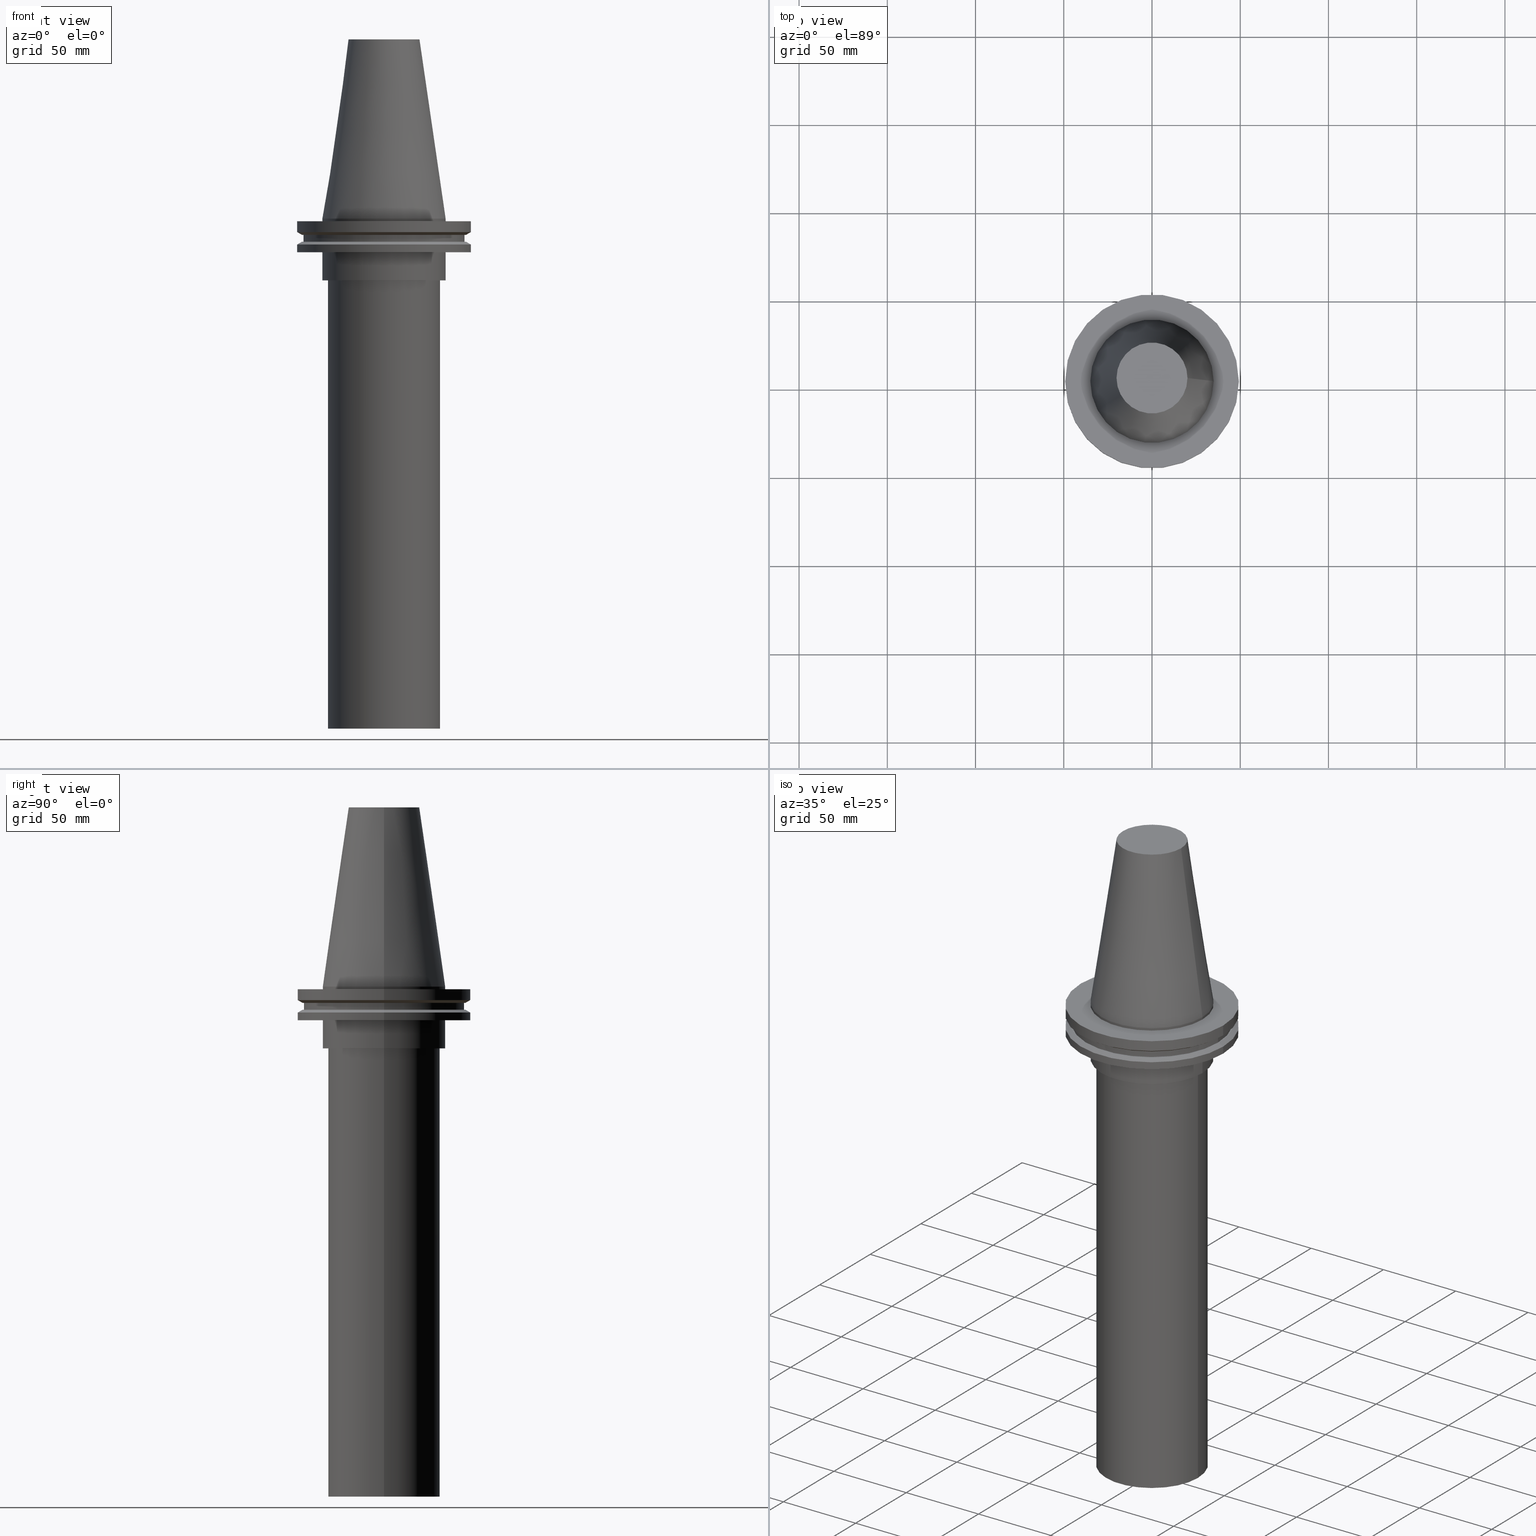
[diagram: canonical four-view strip — front | top / right | iso, engineering-drawing reading convention]
A machine part, canonical four-view strip (front | top / right | iso — engineering-drawing reading convention). The complete STEP part file that produces these views, byte-faithful:
ISO-10303-21;
HEADER;
FILE_DESCRIPTION (( 'STEP AP203' ),
    '1' );
FILE_NAME ('11.368.667.stp',
    '2022-03-09T15:22:56',
    ( '' ),
    ( '' ),
    'SwSTEP 2.0',
    'SolidWorks 2021',
    '' );
FILE_SCHEMA (( 'CONFIG_CONTROL_DESIGN' ));
ENDSEC;

DATA;
#1 = VERTEX_POINT ( 'NONE', #312 ) ;
#2 = DIRECTION ( 'NONE',  ( 1.000000000000000000, 0.000000000000000000, 0.000000000000000000 ) ) ;
#3 = COORDINATED_UNIVERSAL_TIME_OFFSET ( 6, 0, .BEHIND. ) ;
#4 = EDGE_CURVE ( 'NONE', #118, #118, #334, .T. ) ;
#5 = EDGE_LOOP ( 'NONE', ( #287 ) ) ;
#6 = AXIS2_PLACEMENT_3D ( 'NONE', #23, #241, #365 ) ;
#7 = AXIS2_PLACEMENT_3D ( 'NONE', #281, #375, #2 ) ;
#8 = FACE_OUTER_BOUND ( 'NONE', #316, .T. ) ;
#9 = VERTEX_POINT ( 'NONE', #345 ) ;
#10 = ORIENTED_EDGE ( 'NONE', *, *, #48, .T. ) ;
#11 = ADVANCED_FACE ( 'NONE', ( #42, #8 ), #374, .T. ) ;
#12 = FACE_OUTER_BOUND ( 'NONE', #106, .T. ) ;
#13 = CARTESIAN_POINT ( 'NONE',  ( 0.000000000000000000, 49.21499999999998920, -19.04999999999999716 ) ) ;
#14 = FACE_BOUND ( 'NONE', #67, .T. ) ;
#15 = DIRECTION ( 'NONE',  ( 1.000000000000000000, 0.000000000000000000, 0.000000000000000000 ) ) ;
#16 = PERSON_AND_ORGANIZATION ( #393, #100 ) ;
#17 = DIRECTION ( 'NONE',  ( -0.000000000000000000, -0.000000000000000000, 1.000000000000000000 ) ) ;
#18 = CONICAL_SURFACE ( 'NONE', #230, 46.43919780457007818, 1.047197551196575205 ) ;
#19 = CARTESIAN_POINT ( 'NONE',  ( 0.000000000000000000, 31.75000000000000000, -289.0000000000000568 ) ) ;
#20 = EDGE_CURVE ( 'NONE', #358, #358, #240, .T. ) ;
#21 = DIRECTION ( 'NONE',  ( -0.000000000000000000, -0.000000000000000000, 1.000000000000000000 ) ) ;
#22 = EDGE_LOOP ( 'NONE', ( #313 ) ) ;
#23 = CARTESIAN_POINT ( 'NONE',  ( 0.000000000000000000, 0.000000000000000000, 0.000000000000000000 ) ) ;
#24 = CIRCLE ( 'NONE', #78, 46.43919780457007818 ) ;
#25 = DIRECTION ( 'NONE',  ( 0.000000000000000000, 0.000000000000000000, -1.000000000000000000 ) ) ;
#26 = EDGE_CURVE ( 'NONE', #239, #239, #212, .T. ) ;
#27 = EDGE_LOOP ( 'NONE', ( #130 ) ) ;
#28 = DIRECTION ( 'NONE',  ( -1.000000000000000000, 0.000000000000000000, 0.000000000000000000 ) ) ;
#29 = EDGE_LOOP ( 'NONE', ( #254 ) ) ;
#30 = SECURITY_CLASSIFICATION ( '', '', #51 ) ;
#31 = PERSON_AND_ORGANIZATION ( #393, #100 ) ;
#32 = CARTESIAN_POINT ( 'NONE',  ( 0.000000000000000000, 0.000000000000000000, -9.204999999999991189 ) ) ;
#33 = VERTEX_POINT ( 'NONE', #134 ) ;
#34 = ORIENTED_EDGE ( 'NONE', *, *, #388, .T. ) ;
#35 = APPLICATION_CONTEXT ( 'configuration controlled 3d designs of mechanical parts and assemblies' ) ;
#36 = VERTEX_POINT ( 'NONE', #215 ) ;
#37 = EDGE_LOOP ( 'NONE', ( #188 ) ) ;
#38 = AXIS2_PLACEMENT_3D ( 'NONE', #201, #356, #85 ) ;
#39 = PERSON_AND_ORGANIZATION ( #393, #100 ) ;
#40 = AXIS2_PLACEMENT_3D ( 'NONE', #233, #351, #170 ) ;
#41 = CC_DESIGN_PERSON_AND_ORGANIZATION_ASSIGNMENT ( #39, #369, ( #372 ) ) ;
#42 = FACE_OUTER_BOUND ( 'NONE', #79, .T. ) ;
#43 = EDGE_LOOP ( 'NONE', ( #208 ) ) ;
#44 = DIRECTION ( 'NONE',  ( 0.000000000000000000, 0.000000000000000000, -1.000000000000000000 ) ) ;
#45 = PERSON_AND_ORGANIZATION ( #393, #100 ) ;
#46 = CARTESIAN_POINT ( 'NONE',  ( 0.000000000000000000, 0.000000000000000000, -35.00000000000000000 ) ) ;
#47 = CIRCLE ( 'NONE', #390, 34.92499999999999005 ) ;
#48 = EDGE_CURVE ( 'NONE', #211, #211, #283, .T. ) ;
#49 = APPROVAL_STATUS ( 'not_yet_approved' ) ;
#50 = DIRECTION ( 'NONE',  ( -1.000000000000000000, 0.000000000000000000, -0.000000000000000000 ) ) ;
#51 = SECURITY_CLASSIFICATION_LEVEL ( 'unclassified' ) ;
#52 = DIRECTION ( 'NONE',  ( 1.000000000000000000, 0.000000000000000000, 0.000000000000000000 ) ) ;
#53 = DIRECTION ( 'NONE',  ( -0.000000000000000000, -0.000000000000000000, 1.000000000000000000 ) ) ;
#54 = EDGE_CURVE ( 'NONE', #9, #9, #159, .T. ) ;
#55 = DIRECTION ( 'NONE',  ( 1.000000000000000000, 0.000000000000000000, 0.000000000000000000 ) ) ;
#56 = EDGE_LOOP ( 'NONE', ( #104 ) ) ;
#57 = PLANE ( 'NONE',  #262 ) ;
#58 = CC_DESIGN_PERSON_AND_ORGANIZATION_ASSIGNMENT ( #45, #165, ( #30 ) ) ;
#59 = CARTESIAN_POINT ( 'NONE',  ( 0.000000000000000000, 0.000000000000000000, -14.65761014474876944 ) ) ;
#60 = AXIS2_PLACEMENT_3D ( 'NONE', #59, #303, #206 ) ;
#61 = ORIENTED_EDGE ( 'NONE', *, *, #48, .F. ) ;
#62 = AXIS2_PLACEMENT_3D ( 'NONE', #244, #344, #367 ) ;
#63 = CIRCLE ( 'NONE', #167, 31.75000000000000000 ) ;
#64 = FACE_OUTER_BOUND ( 'NONE', #99, .T. ) ;
#65 = FACE_OUTER_BOUND ( 'NONE', #158, .T. ) ;
#66 = APPROVAL_ROLE ( '' ) ;
#67 = EDGE_LOOP ( 'NONE', ( #178 ) ) ;
#68 = EDGE_CURVE ( 'NONE', #279, #279, #364, .T. ) ;
#69 = APPROVAL_PERSON_ORGANIZATION ( #70, #252, #66 ) ;
#70 = PERSON_AND_ORGANIZATION ( #393, #100 ) ;
#71 = ORIENTED_EDGE ( 'NONE', *, *, #359, .F. ) ;
#72 = ORIENTED_EDGE ( 'NONE', *, *, #359, .T. ) ;
#73 = EDGE_CURVE ( 'NONE', #245, #245, #297, .T. ) ;
#74 = DIRECTION ( 'NONE',  ( 0.000000000000000000, 0.000000000000000000, 1.000000000000000000 ) ) ;
#75 = DIRECTION ( 'NONE',  ( 1.000000000000000000, 0.000000000000000000, 0.000000000000000000 ) ) ;
#76 = CLOSED_SHELL ( 'NONE', ( #194, #376, #352, #141, #87, #11, #337, #209, #164, #115, #280, #199, #180, #186, #227, #291 ) ) ;
#77 = DATE_TIME_ROLE ( 'classification_date' ) ;
#78 = AXIS2_PLACEMENT_3D ( 'NONE', #357, #21, #389 ) ;
#79 = EDGE_LOOP ( 'NONE', ( #272 ) ) ;
#80 = PERSON_AND_ORGANIZATION ( #393, #100 ) ;
#81 = DIRECTION ( 'NONE',  ( -0.000000000000000000, -0.000000000000000000, 1.000000000000000000 ) ) ;
#82 = CARTESIAN_POINT ( 'NONE',  ( 0.000000000000000000, 0.000000000000000000, -1.499999999999987566 ) ) ;
#83 = APPROVAL_ROLE ( '' ) ;
#84 = CIRCLE ( 'NONE', #193, 49.21499999999999631 ) ;
#85 = DIRECTION ( 'NONE',  ( 1.000000000000000000, 0.000000000000000000, 0.000000000000000000 ) ) ;
#86 = CYLINDRICAL_SURFACE ( 'NONE', #38, 45.64500000000000313 ) ;
#87 = ADVANCED_FACE ( 'NONE', ( #264, #14 ), #295, .F. ) ;
#88 = FACE_OUTER_BOUND ( 'NONE', #27, .T. ) ;
#89 = FACE_OUTER_BOUND ( 'NONE', #360, .T. ) ;
#90 = CC_DESIGN_APPROVAL ( #321, ( #30 ) ) ;
#91 = FACE_OUTER_BOUND ( 'NONE', #56, .T. ) ;
#92 = ORIENTED_EDGE ( 'NONE', *, *, #26, .F. ) ;
#93 = DIRECTION ( 'NONE',  ( -0.000000000000000000, -0.000000000000000000, 1.000000000000000000 ) ) ;
#94 = CARTESIAN_POINT ( 'NONE',  ( 31.75000000000000000, 0.000000000000000000, -289.0000000000000568 ) ) ;
#95 = AXIS2_PLACEMENT_3D ( 'NONE', #322, #258, #259 ) ;
#96 = AXIS2_PLACEMENT_3D ( 'NONE', #173, #97, #122 ) ;
#97 = DIRECTION ( 'NONE',  ( 0.000000000000000000, -0.000000000000000000, 1.000000000000000000 ) ) ;
#98 = VERTEX_POINT ( 'NONE', #187 ) ;
#99 = EDGE_LOOP ( 'NONE', ( #163 ) ) ;
#100 = ORGANIZATION ( 'UNSPECIFIED', 'UNSPECIFIED', '' ) ;
#101 = VERTEX_POINT ( 'NONE', #343 ) ;
#102 = ORIENTED_EDGE ( 'NONE', *, *, #20, .T. ) ;
#103 = COORDINATED_UNIVERSAL_TIME_OFFSET ( 6, 0, .BEHIND. ) ;
#104 = ORIENTED_EDGE ( 'NONE', *, *, #238, .T. ) ;
#105 = CARTESIAN_POINT ( 'NONE',  ( 49.21499999999999631, 0.000000000000000000, -1.499999999999987566 ) ) ;
#106 = EDGE_LOOP ( 'NONE', ( #71 ) ) ;
#107 = FACE_BOUND ( 'NONE', #309, .T. ) ;
#108 = PERSON_AND_ORGANIZATION ( #393, #100 ) ;
#109 = EDGE_CURVE ( 'NONE', #306, #306, #382, .T. ) ;
#110 = FACE_BOUND ( 'NONE', #329, .T. ) ;
#111 = FACE_OUTER_BOUND ( 'NONE', #174, .T. ) ;
#112 = AXIS2_PLACEMENT_3D ( 'NONE', #46, #17, #145 ) ;
#113 = FACE_OUTER_BOUND ( 'NONE', #119, .T. ) ;
#114 = AXIS2_PLACEMENT_3D ( 'NONE', #395, #74, #339 ) ;
#115 = ADVANCED_FACE ( 'NONE', ( #198, #110 ), #378, .F. ) ;
#116 = DIRECTION ( 'NONE',  ( 0.000000000000000000, 0.000000000000000000, -1.000000000000000000 ) ) ;
#117 = CARTESIAN_POINT ( 'NONE',  ( 0.000000000000000000, 0.000000000000000000, -9.204999999999991189 ) ) ;
#118 = VERTEX_POINT ( 'NONE', #235 ) ;
#119 = EDGE_LOOP ( 'NONE', ( #331 ) ) ;
#120 = CC_DESIGN_APPROVAL ( #296, ( #219 ) ) ;
#121 = CARTESIAN_POINT ( 'NONE',  ( 0.000000000000000000, 0.000000000000000000, 101.5999999999999943 ) ) ;
#122 = DIRECTION ( 'NONE',  ( 1.000000000000000000, 0.000000000000000000, 0.000000000000000000 ) ) ;
#123 = CARTESIAN_POINT ( 'NONE',  ( 0.000000000000000000, 0.000000000000000000, -35.00000000000000000 ) ) ;
#124 = AXIS2_PLACEMENT_3D ( 'NONE', #82, #380, #324 ) ;
#125 = EDGE_CURVE ( 'NONE', #98, #98, #298, .T. ) ;
#126 = CARTESIAN_POINT ( 'NONE',  ( 0.000000000000000000, 0.000000000000000000, 101.5999999999999943 ) ) ;
#127 = DIRECTION ( 'NONE',  ( -0.000000000000000000, -0.000000000000000000, 1.000000000000000000 ) ) ;
#128 = CALENDAR_DATE ( 2022, 9, 3 ) ;
#129 = EDGE_CURVE ( 'NONE', #1, #1, #350, .T. ) ;
#130 = ORIENTED_EDGE ( 'NONE', *, *, #129, .T. ) ;
#131 = AXIS2_PLACEMENT_3D ( 'NONE', #138, #53, #168 ) ;
#132 =( NAMED_UNIT ( * ) SI_UNIT ( $, .STERADIAN. ) SOLID_ANGLE_UNIT ( ) );
#133 = EDGE_LOOP ( 'NONE', ( #278 ) ) ;
#134 = CARTESIAN_POINT ( 'NONE',  ( 46.43919780457007818, 0.000000000000000000, -13.05499999999999794 ) ) ;
#135 = ORIENTED_EDGE ( 'NONE', *, *, #20, .F. ) ;
#136 = CARTESIAN_POINT ( 'NONE',  ( 0.000000000000000000, 0.000000000000000000, -1.499999999999987566 ) ) ;
#137 = DATE_AND_TIME ( #319, #323 ) ;
#138 = CARTESIAN_POINT ( 'NONE',  ( 0.000000000000000000, 0.000000000000000000, -9.204999999999991189 ) ) ;
#139 = CARTESIAN_POINT ( 'NONE',  ( 0.000000000000000000, 46.43919780457007818, -9.204999999999998295 ) ) ;
#140 = FACE_OUTER_BOUND ( 'NONE', #43, .T. ) ;
#141 = ADVANCED_FACE ( 'NONE', ( #111, #88 ), #226, .T. ) ;
#142 = AXIS2_PLACEMENT_3D ( 'NONE', #162, #216, #338 ) ;
#143 = APPROVAL_STATUS ( 'not_yet_approved' ) ;
#144 = AXIS2_PLACEMENT_3D ( 'NONE', #121, #214, #207 ) ;
#145 = DIRECTION ( 'NONE',  ( 1.000000000000000000, 0.000000000000000000, 0.000000000000000000 ) ) ;
#146 = DIRECTION ( 'NONE',  ( 0.000000000000000000, 0.000000000000000000, -1.000000000000000000 ) ) ;
#147 = DIRECTION ( 'NONE',  ( 1.000000000000000000, 0.000000000000000000, 0.000000000000000000 ) ) ;
#148 = CC_DESIGN_PERSON_AND_ORGANIZATION_ASSIGNMENT ( #108, #377, ( #219 ) ) ;
#149 = CARTESIAN_POINT ( 'NONE',  ( 0.000000000000000000, 0.000000000000000000, -14.65761014474876944 ) ) ;
#150 = CARTESIAN_POINT ( 'NONE',  ( 45.64500000000000313, 0.000000000000000000, -13.05499999999999794 ) ) ;
#151 = EDGE_LOOP ( 'NONE', ( #61 ) ) ;
#152 = FACE_BOUND ( 'NONE', #182, .T. ) ;
#153 = CARTESIAN_POINT ( 'NONE',  ( 34.92499999999999716, 0.000000000000000000, -19.04999999999999716 ) ) ;
#154 = ORIENTED_EDGE ( 'NONE', *, *, #125, .F. ) ;
#155 = ORIENTED_EDGE ( 'NONE', *, *, #68, .F. ) ;
#156 = APPROVAL_STATUS ( 'not_yet_approved' ) ;
#157 = CC_DESIGN_DATE_AND_TIME_ASSIGNMENT ( #181, #308, ( #372 ) ) ;
#158 = EDGE_LOOP ( 'NONE', ( #251 ) ) ;
#159 = CIRCLE ( 'NONE', #228, 49.21499999999998920 ) ;
#160 = CONICAL_SURFACE ( 'NONE', #384, 34.92499999999999005, 0.1448138465474119452 ) ;
#161 = LOCAL_TIME ( 9, 22, 56.00000000000000000, #3 ) ;
#162 = CARTESIAN_POINT ( 'NONE',  ( 0.000000000000000000, 0.000000000000000000, -289.0000000000000568 ) ) ;
#163 = ORIENTED_EDGE ( 'NONE', *, *, #4, .T. ) ;
#164 = ADVANCED_FACE ( 'NONE', ( #113, #294 ), #86, .T. ) ;
#165 = PERSON_AND_ORGANIZATION_ROLE ( 'classification_officer' ) ;
#166 = DIRECTION ( 'NONE',  ( -1.000000000000000000, 0.000000000000000000, 0.000000000000000000 ) ) ;
#167 = AXIS2_PLACEMENT_3D ( 'NONE', #123, #234, #147 ) ;
#168 = DIRECTION ( 'NONE',  ( 1.000000000000000000, 0.000000000000000000, 0.000000000000000000 ) ) ;
#169 = EDGE_CURVE ( 'NONE', #253, #253, #84, .T. ) ;
#170 = DIRECTION ( 'NONE',  ( 1.000000000000000000, 0.000000000000000000, 0.000000000000000000 ) ) ;
#171 = DATE_AND_TIME ( #257, #340 ) ;
#172 = DIRECTION ( 'NONE',  ( -0.000000000000000000, -0.000000000000000000, 1.000000000000000000 ) ) ;
#173 = CARTESIAN_POINT ( 'NONE',  ( 0.000000000000000000, 34.92499999999999716, -35.00000000000000000 ) ) ;
#174 = EDGE_LOOP ( 'NONE', ( #155 ) ) ;
#175 = DIRECTION ( 'NONE',  ( -0.000000000000000000, -0.000000000000000000, 1.000000000000000000 ) ) ;
#176 = CIRCLE ( 'NONE', #60, 49.21499999999998920 ) ;
#177 = CYLINDRICAL_SURFACE ( 'NONE', #144, 49.21499999999999631 ) ;
#178 = ORIENTED_EDGE ( 'NONE', *, *, #68, .T. ) ;
#179 = FACE_OUTER_BOUND ( 'NONE', #29, .T. ) ;
#180 = ADVANCED_FACE ( 'NONE', ( #200, #289 ), #197, .F. ) ;
#181 = DATE_AND_TIME ( #284, #353 ) ;
#182 = EDGE_LOOP ( 'NONE', ( #135 ) ) ;
#183 = AXIS2_PLACEMENT_3D ( 'NONE', #149, #268, #28 ) ;
#184 =( LENGTH_UNIT ( ) NAMED_UNIT ( * ) SI_UNIT ( .MILLI., .METRE. ) );
#185 = ORIENTED_EDGE ( 'NONE', *, *, #169, .F. ) ;
#186 = ADVANCED_FACE ( 'NONE', ( #12, #140 ), #202, .T. ) ;
#187 = CARTESIAN_POINT ( 'NONE',  ( 20.10819343178871321, 0.000000000000000000, 101.5999999999999801 ) ) ;
#188 = ORIENTED_EDGE ( 'NONE', *, *, #388, .F. ) ;
#189 = MANIFOLD_SOLID_BREP ( 'CKB', #76 ) ;
#190 = APPLICATION_PROTOCOL_DEFINITION ( 'international standard', 'config_control_design', 1994, #35 ) ;
#191 = EDGE_LOOP ( 'NONE', ( #34 ) ) ;
#192 = AXIS2_PLACEMENT_3D ( 'NONE', #383, #379, #293 ) ;
#193 = AXIS2_PLACEMENT_3D ( 'NONE', #136, #81, #225 ) ;
#194 = ADVANCED_FACE ( 'NONE', ( #107, #223 ), #160, .T. ) ;
#195 = ORIENTED_EDGE ( 'NONE', *, *, #129, .F. ) ;
#196 = PRODUCT_DEFINITION_SHAPE ( 'NONE', 'NONE',  #372 ) ;
#197 = PLANE ( 'NONE',  #261 ) ;
#198 = FACE_OUTER_BOUND ( 'NONE', #151, .T. ) ;
#199 = ADVANCED_FACE ( 'NONE', ( #299, #64 ), #177, .T. ) ;
#200 = FACE_BOUND ( 'NONE', #221, .T. ) ;
#201 = CARTESIAN_POINT ( 'NONE',  ( 0.000000000000000000, 0.000000000000000000, 101.5999999999999943 ) ) ;
#202 = CYLINDRICAL_SURFACE ( 'NONE', #302, 34.92499999999999005 ) ;
#203 = FACE_BOUND ( 'NONE', #318, .T. ) ;
#204 = AXIS2_PLACEMENT_3D ( 'NONE', #333, #25, #387 ) ;
#205 = ORIENTED_EDGE ( 'NONE', *, *, #54, .T. ) ;
#206 = DIRECTION ( 'NONE',  ( 1.000000000000000000, 0.000000000000000000, 0.000000000000000000 ) ) ;
#207 = DIRECTION ( 'NONE',  ( 1.000000000000000000, 0.000000000000000000, 0.000000000000000000 ) ) ;
#208 = ORIENTED_EDGE ( 'NONE', *, *, #73, .T. ) ;
#209 = ADVANCED_FACE ( 'NONE', ( #152, #361 ), #57, .F. ) ;
#210 = AXIS2_PLACEMENT_3D ( 'NONE', #139, #327, #15 ) ;
#211 = VERTEX_POINT ( 'NONE', #335 ) ;
#212 = CIRCLE ( 'NONE', #142, 31.75000000000000000 ) ;
#213 = APPROVAL_PERSON_ORGANIZATION ( #16, #321, #83 ) ;
#214 = DIRECTION ( 'NONE',  ( -0.000000000000000000, -0.000000000000000000, 1.000000000000000000 ) ) ;
#215 = CARTESIAN_POINT ( 'NONE',  ( 34.92499999999999005, 0.000000000000000000, 0.000000000000000000 ) ) ;
#216 = DIRECTION ( 'NONE',  ( -0.000000000000000000, -0.000000000000000000, 1.000000000000000000 ) ) ;
#217 = CARTESIAN_POINT ( 'NONE',  ( 34.92499999999999005, 0.000000000000000000, -1.499999999999987566 ) ) ;
#218 = DIRECTION ( 'NONE',  ( -0.000000000000000000, -0.000000000000000000, 1.000000000000000000 ) ) ;
#219 = PRODUCT_DEFINITION_FORMATION_WITH_SPECIFIED_SOURCE ( 'ANY', '', #224, .NOT_KNOWN. ) ;
#220 = ORIENTED_EDGE ( 'NONE', *, *, #347, .F. ) ;
#221 = EDGE_LOOP ( 'NONE', ( #311 ) ) ;
#222 = ORIENTED_EDGE ( 'NONE', *, *, #109, .T. ) ;
#223 = FACE_OUTER_BOUND ( 'NONE', #341, .T. ) ;
#224 = PRODUCT ( '11.368.667', '11.368.667', '', ( #250 ) ) ;
#225 = DIRECTION ( 'NONE',  ( 1.000000000000000000, 0.000000000000000000, 0.000000000000000000 ) ) ;
#226 = CYLINDRICAL_SURFACE ( 'NONE', #40, 34.92499999999999716 ) ;
#227 = ADVANCED_FACE ( 'NONE', ( #89, #273 ), #392, .T. ) ;
#228 = AXIS2_PLACEMENT_3D ( 'NONE', #368, #231, #52 ) ;
#229 = SHAPE_DEFINITION_REPRESENTATION ( #196, #305 ) ;
#230 = AXIS2_PLACEMENT_3D ( 'NONE', #117, #175, #55 ) ;
#231 = DIRECTION ( 'NONE',  ( -0.000000000000000000, -0.000000000000000000, 1.000000000000000000 ) ) ;
#232 = CALENDAR_DATE ( 2022, 9, 3 ) ;
#233 = CARTESIAN_POINT ( 'NONE',  ( 0.000000000000000000, 0.000000000000000000, 101.5999999999999943 ) ) ;
#234 = DIRECTION ( 'NONE',  ( -0.000000000000000000, -0.000000000000000000, 1.000000000000000000 ) ) ;
#235 = CARTESIAN_POINT ( 'NONE',  ( 49.21500000000000341, 0.000000000000000000, -7.602389855251287187 ) ) ;
#236 = AXIS2_PLACEMENT_3D ( 'NONE', #19, #330, #301 ) ;
#237 = PLANE ( 'NONE',  #96 ) ;
#238 = EDGE_CURVE ( 'NONE', #101, #101, #176, .T. ) ;
#239 = VERTEX_POINT ( 'NONE', #94 ) ;
#240 = CIRCLE ( 'NONE', #62, 45.64500000000000313 ) ;
#241 = DIRECTION ( 'NONE',  ( -0.000000000000000000, -0.000000000000000000, 1.000000000000000000 ) ) ;
#242 = CONICAL_SURFACE ( 'NONE', #183, 49.21499999999998920, 1.047197551196554333 ) ;
#243 = APPLICATION_PROTOCOL_DEFINITION ( 'international standard', 'config_control_design', 1994, #282 ) ;
#244 = CARTESIAN_POINT ( 'NONE',  ( 0.000000000000000000, 0.000000000000000000, -13.05499999999999794 ) ) ;
#245 = VERTEX_POINT ( 'NONE', #217 ) ;
#246 = DIRECTION ( 'NONE',  ( 1.000000000000000000, 0.000000000000000000, 0.000000000000000000 ) ) ;
#247 = DATE_AND_TIME ( #128, #161 ) ;
#248 = ORIENTED_EDGE ( 'NONE', *, *, #347, .T. ) ;
#249 = APPROVAL_PERSON_ORGANIZATION ( #31, #296, #326 ) ;
#250 = MECHANICAL_CONTEXT ( 'NONE', #282, 'mechanical' ) ;
#251 = ORIENTED_EDGE ( 'NONE', *, *, #125, .T. ) ;
#252 = APPROVAL ( #156, 'UNSPECIFIED' ) ;
#253 = VERTEX_POINT ( 'NONE', #105 ) ;
#254 = ORIENTED_EDGE ( 'NONE', *, *, #4, .F. ) ;
#255 = DIRECTION ( 'NONE',  ( 1.000000000000000000, 0.000000000000000000, 0.000000000000000000 ) ) ;
#256 = LOCAL_TIME ( 9, 22, 56.00000000000000000, #354 ) ;
#257 = CALENDAR_DATE ( 2022, 9, 3 ) ;
#258 = DIRECTION ( 'NONE',  ( -0.000000000000000000, -0.000000000000000000, 1.000000000000000000 ) ) ;
#259 = DIRECTION ( 'NONE',  ( 1.000000000000000000, 0.000000000000000000, 0.000000000000000000 ) ) ;
#260 = CARTESIAN_POINT ( 'NONE',  ( 0.000000000000000000, 0.000000000000000000, 101.5999999999999943 ) ) ;
#261 = AXIS2_PLACEMENT_3D ( 'NONE', #386, #116, #50 ) ;
#262 = AXIS2_PLACEMENT_3D ( 'NONE', #328, #146, #267 ) ;
#263 = APPROVAL_DATE_TIME ( #292, #321 ) ;
#264 = FACE_OUTER_BOUND ( 'NONE', #22, .T. ) ;
#265 = PLANE ( 'NONE',  #204 ) ;
#266 = UNCERTAINTY_MEASURE_WITH_UNIT (LENGTH_MEASURE( 1.000000000000000082E-05 ), #184, 'distance_accuracy_value', 'NONE');
#267 = DIRECTION ( 'NONE',  ( -1.000000000000000000, 0.000000000000000000, -0.000000000000000000 ) ) ;
#268 = DIRECTION ( 'NONE',  ( 0.000000000000000000, 0.000000000000000000, -1.000000000000000000 ) ) ;
#269 = CC_DESIGN_PERSON_AND_ORGANIZATION_ASSIGNMENT ( #80, #349, ( #219 ) ) ;
#270 =( GEOMETRIC_REPRESENTATION_CONTEXT ( 3 ) GLOBAL_UNCERTAINTY_ASSIGNED_CONTEXT ( ( #266 ) ) GLOBAL_UNIT_ASSIGNED_CONTEXT ( ( #184, #277, #132 ) ) REPRESENTATION_CONTEXT ( 'NONE', 'WORKASPACE' ) );
#271 = FACE_OUTER_BOUND ( 'NONE', #346, .T. ) ;
#272 = ORIENTED_EDGE ( 'NONE', *, *, #238, .F. ) ;
#273 = FACE_OUTER_BOUND ( 'NONE', #133, .T. ) ;
#274 = VERTEX_POINT ( 'NONE', #310 ) ;
#275 = CARTESIAN_POINT ( 'NONE',  ( 45.64500000000000313, 0.000000000000000000, -9.204999999999991189 ) ) ;
#276 = EDGE_LOOP ( 'NONE', ( #92 ) ) ;
#277 =( NAMED_UNIT ( * ) PLANE_ANGLE_UNIT ( ) SI_UNIT ( $, .RADIAN. ) );
#278 = ORIENTED_EDGE ( 'NONE', *, *, #26, .T. ) ;
#279 = VERTEX_POINT ( 'NONE', #153 ) ;
#280 = ADVANCED_FACE ( 'NONE', ( #179, #336 ), #18, .T. ) ;
#281 = CARTESIAN_POINT ( 'NONE',  ( 0.000000000000000000, 0.000000000000000000, -7.602389855251287187 ) ) ;
#282 = APPLICATION_CONTEXT ( 'configuration controlled 3d designs of mechanical parts and assemblies' ) ;
#283 = CIRCLE ( 'NONE', #363, 46.43919780457007818 ) ;
#284 = CALENDAR_DATE ( 2022, 9, 3 ) ;
#285 = EDGE_LOOP ( 'NONE', ( #185 ) ) ;
#286 = COORDINATED_UNIVERSAL_TIME_OFFSET ( 6, 0, .BEHIND. ) ;
#287 = ORIENTED_EDGE ( 'NONE', *, *, #169, .T. ) ;
#288 = APPROVAL_DATE_TIME ( #137, #296 ) ;
#289 = FACE_OUTER_BOUND ( 'NONE', #5, .T. ) ;
#290 = CC_DESIGN_APPROVAL ( #252, ( #372 ) ) ;
#291 = ADVANCED_FACE ( 'NONE', ( #394 ), #362, .F. ) ;
#292 = DATE_AND_TIME ( #232, #256 ) ;
#293 = DIRECTION ( 'NONE',  ( 1.000000000000000000, 0.000000000000000000, 0.000000000000000000 ) ) ;
#294 = FACE_OUTER_BOUND ( 'NONE', #371, .T. ) ;
#295 = PLANE ( 'NONE',  #317 ) ;
#296 = APPROVAL ( #49, 'UNSPECIFIED' ) ;
#297 = CIRCLE ( 'NONE', #124, 34.92499999999999005 ) ;
#298 = CIRCLE ( 'NONE', #95, 20.10819343178871321 ) ;
#299 = FACE_OUTER_BOUND ( 'NONE', #285, .T. ) ;
#300 = DIRECTION ( 'NONE',  ( 1.000000000000000000, 0.000000000000000000, 0.000000000000000000 ) ) ;
#301 = DIRECTION ( 'NONE',  ( 1.000000000000000000, 0.000000000000000000, 0.000000000000000000 ) ) ;
#302 = AXIS2_PLACEMENT_3D ( 'NONE', #260, #172, #255 ) ;
#303 = DIRECTION ( 'NONE',  ( -0.000000000000000000, -0.000000000000000000, 1.000000000000000000 ) ) ;
#304 = FACE_BOUND ( 'NONE', #37, .T. ) ;
#305 = ADVANCED_BREP_SHAPE_REPRESENTATION ( '11.368.667', ( #189, #114 ), #270 ) ;
#306 = VERTEX_POINT ( 'NONE', #275 ) ;
#307 = CC_DESIGN_DATE_AND_TIME_ASSIGNMENT ( #171, #77, ( #30 ) ) ;
#308 = DATE_TIME_ROLE ( 'creation_date' ) ;
#309 = EDGE_LOOP ( 'NONE', ( #154 ) ) ;
#310 = CARTESIAN_POINT ( 'NONE',  ( 31.75000000000000000, 0.000000000000000000, -35.00000000000000000 ) ) ;
#311 = ORIENTED_EDGE ( 'NONE', *, *, #73, .F. ) ;
#312 = CARTESIAN_POINT ( 'NONE',  ( 34.92499999999999716, 0.000000000000000000, -35.00000000000000000 ) ) ;
#313 = ORIENTED_EDGE ( 'NONE', *, *, #54, .F. ) ;
#314 = AXIS2_PLACEMENT_3D ( 'NONE', #126, #218, #75 ) ;
#315 = APPROVAL_DATE_TIME ( #247, #252 ) ;
#316 = EDGE_LOOP ( 'NONE', ( #205 ) ) ;
#317 = AXIS2_PLACEMENT_3D ( 'NONE', #13, #348, #355 ) ;
#318 = EDGE_LOOP ( 'NONE', ( #248 ) ) ;
#319 = CALENDAR_DATE ( 2022, 9, 3 ) ;
#320 = CARTESIAN_POINT ( 'NONE',  ( 0.000000000000000000, 0.000000000000000000, 0.000000000000000000 ) ) ;
#321 = APPROVAL ( #143, 'UNSPECIFIED' ) ;
#322 = CARTESIAN_POINT ( 'NONE',  ( 0.000000000000000000, 0.000000000000000000, 101.5999999999999801 ) ) ;
#323 = LOCAL_TIME ( 9, 22, 56.00000000000000000, #286 ) ;
#324 = DIRECTION ( 'NONE',  ( 1.000000000000000000, 0.000000000000000000, 0.000000000000000000 ) ) ;
#325 = DESIGN_CONTEXT ( 'detailed design', #35, 'design' ) ;
#326 = APPROVAL_ROLE ( '' ) ;
#327 = DIRECTION ( 'NONE',  ( 0.000000000000000000, -0.000000000000000000, 1.000000000000000000 ) ) ;
#328 = CARTESIAN_POINT ( 'NONE',  ( 0.000000000000000000, 45.64500000000000313, -13.05499999999999794 ) ) ;
#329 = EDGE_LOOP ( 'NONE', ( #222 ) ) ;
#330 = DIRECTION ( 'NONE',  ( 0.000000000000000000, -0.000000000000000000, 1.000000000000000000 ) ) ;
#331 = ORIENTED_EDGE ( 'NONE', *, *, #109, .F. ) ;
#332 = CC_DESIGN_PERSON_AND_ORGANIZATION_ASSIGNMENT ( #373, #366, ( #224 ) ) ;
#333 = CARTESIAN_POINT ( 'NONE',  ( 0.000000000000000000, 20.10819343178871321, 101.5999999999999943 ) ) ;
#334 = CIRCLE ( 'NONE', #7, 49.21500000000000341 ) ;
#335 = CARTESIAN_POINT ( 'NONE',  ( 46.43919780457007818, 0.000000000000000000, -9.204999999999991189 ) ) ;
#336 = FACE_BOUND ( 'NONE', #342, .T. ) ;
#337 = ADVANCED_FACE ( 'NONE', ( #304, #91 ), #242, .T. ) ;
#338 = DIRECTION ( 'NONE',  ( 1.000000000000000000, 0.000000000000000000, 0.000000000000000000 ) ) ;
#339 = DIRECTION ( 'NONE',  ( 1.000000000000000000, 0.000000000000000000, 0.000000000000000000 ) ) ;
#340 = LOCAL_TIME ( 9, 22, 56.00000000000000000, #385 ) ;
#341 = EDGE_LOOP ( 'NONE', ( #72 ) ) ;
#342 = EDGE_LOOP ( 'NONE', ( #10 ) ) ;
#343 = CARTESIAN_POINT ( 'NONE',  ( 49.21499999999998920, 0.000000000000000000, -14.65761014474876944 ) ) ;
#344 = DIRECTION ( 'NONE',  ( -0.000000000000000000, -0.000000000000000000, 1.000000000000000000 ) ) ;
#345 = CARTESIAN_POINT ( 'NONE',  ( 49.21499999999998920, 0.000000000000000000, -19.04999999999999716 ) ) ;
#346 = EDGE_LOOP ( 'NONE', ( #195 ) ) ;
#347 = EDGE_CURVE ( 'NONE', #274, #274, #63, .T. ) ;
#348 = DIRECTION ( 'NONE',  ( 0.000000000000000000, -0.000000000000000000, 1.000000000000000000 ) ) ;
#349 = PERSON_AND_ORGANIZATION_ROLE ( 'design_supplier' ) ;
#350 = CIRCLE ( 'NONE', #112, 34.92499999999999716 ) ;
#351 = DIRECTION ( 'NONE',  ( -0.000000000000000000, -0.000000000000000000, 1.000000000000000000 ) ) ;
#352 = ADVANCED_FACE ( 'NONE', ( #203, #271 ), #237, .F. ) ;
#353 = LOCAL_TIME ( 9, 22, 56.00000000000000000, #103 ) ;
#354 = COORDINATED_UNIVERSAL_TIME_OFFSET ( 6, 0, .BEHIND. ) ;
#355 = DIRECTION ( 'NONE',  ( 1.000000000000000000, 0.000000000000000000, 0.000000000000000000 ) ) ;
#356 = DIRECTION ( 'NONE',  ( -0.000000000000000000, -0.000000000000000000, 1.000000000000000000 ) ) ;
#357 = CARTESIAN_POINT ( 'NONE',  ( 0.000000000000000000, 0.000000000000000000, -13.05499999999999794 ) ) ;
#358 = VERTEX_POINT ( 'NONE', #150 ) ;
#359 = EDGE_CURVE ( 'NONE', #36, #36, #47, .T. ) ;
#360 = EDGE_LOOP ( 'NONE', ( #220 ) ) ;
#361 = FACE_OUTER_BOUND ( 'NONE', #191, .T. ) ;
#362 = PLANE ( 'NONE',  #236 ) ;
#363 = AXIS2_PLACEMENT_3D ( 'NONE', #32, #127, #246 ) ;
#364 = CIRCLE ( 'NONE', #192, 34.92499999999999716 ) ;
#365 = DIRECTION ( 'NONE',  ( 1.000000000000000000, 0.000000000000000000, 0.000000000000000000 ) ) ;
#366 = PERSON_AND_ORGANIZATION_ROLE ( 'design_owner' ) ;
#367 = DIRECTION ( 'NONE',  ( 1.000000000000000000, 0.000000000000000000, 0.000000000000000000 ) ) ;
#368 = CARTESIAN_POINT ( 'NONE',  ( 0.000000000000000000, 0.000000000000000000, -19.04999999999999716 ) ) ;
#369 = PERSON_AND_ORGANIZATION_ROLE ( 'creator' ) ;
#370 = CC_DESIGN_SECURITY_CLASSIFICATION ( #30, ( #219 ) ) ;
#371 = EDGE_LOOP ( 'NONE', ( #102 ) ) ;
#372 = PRODUCT_DEFINITION ( 'UNKNOWN', '', #219, #325 ) ;
#373 = PERSON_AND_ORGANIZATION ( #393, #100 ) ;
#374 = CYLINDRICAL_SURFACE ( 'NONE', #314, 49.21499999999998920 ) ;
#375 = DIRECTION ( 'NONE',  ( -0.000000000000000000, -0.000000000000000000, 1.000000000000000000 ) ) ;
#376 = ADVANCED_FACE ( 'NONE', ( #65 ), #265, .F. ) ;
#377 = PERSON_AND_ORGANIZATION_ROLE ( 'creator' ) ;
#378 = PLANE ( 'NONE',  #210 ) ;
#379 = DIRECTION ( 'NONE',  ( -0.000000000000000000, -0.000000000000000000, 1.000000000000000000 ) ) ;
#380 = DIRECTION ( 'NONE',  ( -0.000000000000000000, -0.000000000000000000, 1.000000000000000000 ) ) ;
#381 = PRODUCT_RELATED_PRODUCT_CATEGORY ( 'detail', '', ( #224 ) ) ;
#382 = CIRCLE ( 'NONE', #131, 45.64500000000000313 ) ;
#383 = CARTESIAN_POINT ( 'NONE',  ( 0.000000000000000000, 0.000000000000000000, -19.04999999999999716 ) ) ;
#384 = AXIS2_PLACEMENT_3D ( 'NONE', #320, #44, #166 ) ;
#385 = COORDINATED_UNIVERSAL_TIME_OFFSET ( 6, 0, .BEHIND. ) ;
#386 = CARTESIAN_POINT ( 'NONE',  ( 0.000000000000000000, 49.21499999999999631, -1.499999999999992895 ) ) ;
#387 = DIRECTION ( 'NONE',  ( -1.000000000000000000, 0.000000000000000000, -0.000000000000000000 ) ) ;
#388 = EDGE_CURVE ( 'NONE', #33, #33, #24, .T. ) ;
#389 = DIRECTION ( 'NONE',  ( 1.000000000000000000, 0.000000000000000000, 0.000000000000000000 ) ) ;
#390 = AXIS2_PLACEMENT_3D ( 'NONE', #391, #93, #300 ) ;
#391 = CARTESIAN_POINT ( 'NONE',  ( 0.000000000000000000, 0.000000000000000000, 0.000000000000000000 ) ) ;
#392 = CYLINDRICAL_SURFACE ( 'NONE', #6, 31.75000000000000000 ) ;
#393 = PERSON ( 'UNSPECIFIED', 'UNSPECIFIED', 'UNSPECIFIED', ('UNSPECIFIED'), ('UNSPECIFIED'), ('UNSPECIFIED') ) ;
#394 = FACE_OUTER_BOUND ( 'NONE', #276, .T. ) ;
#395 = CARTESIAN_POINT ( 'NONE',  ( 0.000000000000000000, 0.000000000000000000, 0.000000000000000000 ) ) ;
ENDSEC;
END-ISO-10303-21;
